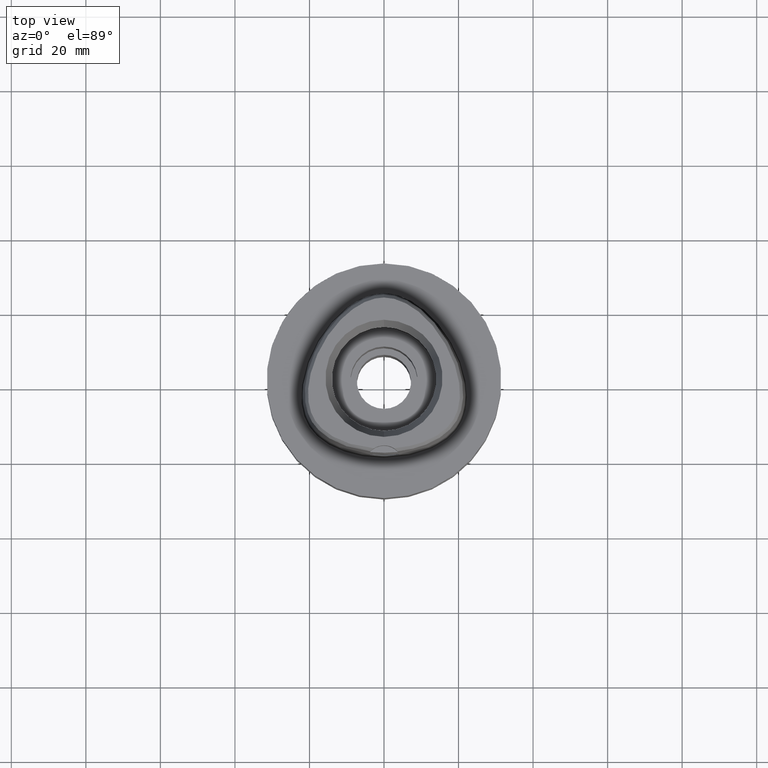
[diagram: clean part render]
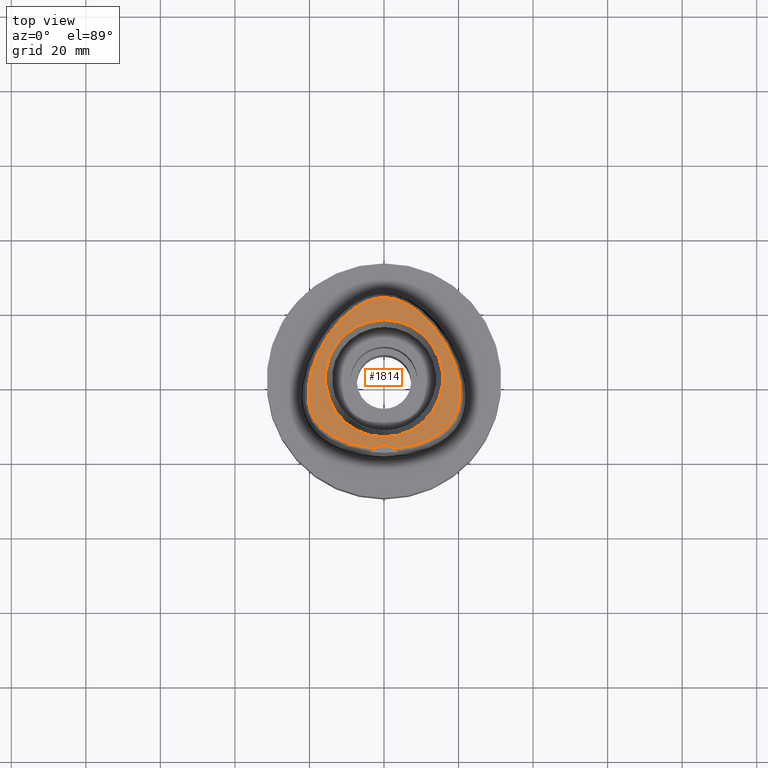
[diagram: same view with one face highlighted and labeled with its STEP entity id]
A machine part, top view. The second image highlights one B-rep face of the part: STEP entity #1814.
In plain terms, the highlighted planar face has unit normal (0, 0, 1).
Its self-contained STEP definition (entity closure, byte-faithful):
#17=CARTESIAN_POINT('',(0.E0,-2.3E1,3.8E1));
#18=DIRECTION('',(0.E0,0.E0,1.E0));
#19=DIRECTION('',(5.364574965210E-1,8.439273395420E-1,0.E0));
#20=AXIS2_PLACEMENT_3D('',#17,#18,#19);
#26=CARTESIAN_POINT('',(0.E0,-2.3E1,3.8E1));
#27=DIRECTION('',(0.E0,0.E0,1.E0));
#28=DIRECTION('',(0.E0,1.E0,0.E0));
#29=AXIS2_PLACEMENT_3D('',#26,#27,#28);
#34=CARTESIAN_POINT('',(-2.682279906005E0,-1.878035848610E1,3.8E1));
#35=CARTESIAN_POINT('',(-3.605044543575E0,-1.870650437950E1,3.8E1));
#36=CARTESIAN_POINT('',(-5.365912979900E0,-1.848966039945E1,3.8E1));
#37=CARTESIAN_POINT('',(-7.814932398298E0,-1.797793258966E1,3.8E1));
#38=CARTESIAN_POINT('',(-9.898201877495E0,-1.735843845320E1,3.8E1));
#39=CARTESIAN_POINT('',(-1.170961142687E1,-1.665946001555E1,3.8E1));
#40=CARTESIAN_POINT('',(-1.334375963002E1,-1.586644387461E1,3.8E1));
#41=CARTESIAN_POINT('',(-1.480618163515E1,-1.498253951072E1,3.8E1));
#42=CARTESIAN_POINT('',(-1.604171482152E1,-1.405870325864E1,3.8E1));
#43=CARTESIAN_POINT('',(-1.706528419309E1,-1.311841240330E1,3.8E1));
#44=CARTESIAN_POINT('',(-1.790739026018E1,-1.216455668928E1,3.8E1));
#45=CARTESIAN_POINT('',(-1.858910201746E1,-1.120363085430E1,3.8E1));
#46=CARTESIAN_POINT('',(-1.914742921930E1,-1.020016978026E1,3.8E1));
#47=CARTESIAN_POINT('',(-1.961575120582E1,-9.090601574277E0,3.8E1));
#48=CARTESIAN_POINT('',(-1.999289826707E1,-7.840569600446E0,3.8E1));
#49=CARTESIAN_POINT('',(-2.026237944030E1,-6.438762205995E0,3.8E1));
#50=CARTESIAN_POINT('',(-2.040516017540E1,-4.845126522337E0,3.8E1));
#51=CARTESIAN_POINT('',(-2.039150448428E1,-3.103493908578E0,3.8E1));
#52=CARTESIAN_POINT('',(-2.021359234150E1,-1.270380684030E0,3.8E1));
#53=CARTESIAN_POINT('',(-1.986015366214E1,6.921718297762E-1,3.8E1));
#54=CARTESIAN_POINT('',(-1.927772501244E1,2.897861535362E0,3.8E1));
#55=CARTESIAN_POINT('',(-1.840691846273E1,5.339552270274E0,3.8E1));
#56=CARTESIAN_POINT('',(-1.728006101077E1,7.816127792934E0,3.8E1));
#57=CARTESIAN_POINT('',(-1.592729686199E1,1.023932583429E1,3.8E1));
#58=CARTESIAN_POINT('',(-1.439244134278E1,1.252438524484E1,3.8E1));
#59=CARTESIAN_POINT('',(-1.273649414019E1,1.459258366883E1,3.8E1));
#60=CARTESIAN_POINT('',(-1.109687558070E1,1.631910659473E1,3.8E1));
#61=CARTESIAN_POINT('',(-9.550338956047E0,1.770478286875E1,3.8E1));
#62=CARTESIAN_POINT('',(-8.043662397608E0,1.885066641454E1,3.8E1));
#63=CARTESIAN_POINT('',(-6.544984523643E0,1.979885074261E1,3.8E1));
#64=CARTESIAN_POINT('',(-5.076347123534E0,2.054544732473E1,3.8E1));
#65=CARTESIAN_POINT('',(-3.688723480709E0,2.108513043701E1,3.8E1));
#66=CARTESIAN_POINT('',(-2.389891480302E0,2.144239305594E1,3.8E1));
#67=CARTESIAN_POINT('',(-1.169135698992E0,2.164401263346E1,3.8E1));
#68=CARTESIAN_POINT('',(-3.836699104126E-1,2.168728795389E1,3.8E1));
#69=CARTESIAN_POINT('',(-3.470944899438E-11,2.168728795390E1,3.8E1));
#74=CARTESIAN_POINT('',(-3.470944899438E-11,2.168728795390E1,3.8E1));
#75=CARTESIAN_POINT('',(3.828524697474E-1,2.168728795390E1,3.8E1));
#76=CARTESIAN_POINT('',(1.166996534032E0,2.164416961378E1,3.8E1));
#77=CARTESIAN_POINT('',(2.386214977875E0,2.144323212036E1,3.8E1));
#78=CARTESIAN_POINT('',(3.685440857519E0,2.108607838229E1,3.8E1));
#79=CARTESIAN_POINT('',(5.068734360611E0,2.054896561737E1,3.8E1));
#80=CARTESIAN_POINT('',(6.547470890100E0,1.979788975628E1,3.8E1));
#81=CARTESIAN_POINT('',(8.051451922599E0,1.884520879348E1,3.8E1));
#82=CARTESIAN_POINT('',(9.550967775840E0,1.770368171045E1,3.8E1));
#83=CARTESIAN_POINT('',(1.108961265526E1,1.632644584861E1,3.8E1));
#84=CARTESIAN_POINT('',(1.274408323069E1,1.458466559719E1,3.8E1));
#85=CARTESIAN_POINT('',(1.440110122193E1,1.251215841303E1,3.8E1));
#86=CARTESIAN_POINT('',(1.592917864170E1,1.023592163505E1,3.8E1));
#87=CARTESIAN_POINT('',(1.728249372404E1,7.811612293159E0,3.8E1));
#88=CARTESIAN_POINT('',(1.840947090673E1,5.333016239902E0,3.8E1));
#89=CARTESIAN_POINT('',(1.927827884097E1,2.896047688491E0,3.8E1));
#90=CARTESIAN_POINT('',(1.986169497045E1,6.857582069426E-1,3.8E1));
#91=CARTESIAN_POINT('',(2.021463167960E1,-1.277500707830E0,3.8E1));
#92=CARTESIAN_POINT('',(2.039215262591E1,-3.113949257389E0,3.8E1));
#93=CARTESIAN_POINT('',(2.040457260960E1,-4.853061352227E0,3.8E1));
#94=CARTESIAN_POINT('',(2.026250945151E1,-6.436967408461E0,3.8E1));
#95=CARTESIAN_POINT('',(1.999278122177E1,-7.841153107175E0,3.8E1));
#96=CARTESIAN_POINT('',(1.961657446255E1,-9.088071154904E0,3.8E1));
#97=CARTESIAN_POINT('',(1.914799894733E1,-1.019925697743E1,3.8E1));
#98=CARTESIAN_POINT('',(1.858861634893E1,-1.120442390857E1,3.8E1));
#99=CARTESIAN_POINT('',(1.790676546633E1,-1.216546320118E1,3.8E1));
#100=CARTESIAN_POINT('',(1.706255639083E1,-1.312117513838E1,3.8E1));
#101=CARTESIAN_POINT('',(1.604112355787E1,-1.405905238164E1,3.8E1));
#102=CARTESIAN_POINT('',(1.480468256930E1,-1.498381942960E1,3.8E1));
#103=CARTESIAN_POINT('',(1.333561002137E1,-1.587085244603E1,3.8E1));
#104=CARTESIAN_POINT('',(1.170721758924E1,-1.666028797660E1,3.8E1));
#105=CARTESIAN_POINT('',(9.897832747889E0,-1.735855037423E1,3.8E1));
#106=CARTESIAN_POINT('',(7.814642341740E0,-1.797806482327E1,3.8E1));
#107=CARTESIAN_POINT('',(5.362599318074E0,-1.849023051912E1,3.8E1));
#108=CARTESIAN_POINT('',(3.603613972740E0,-1.870661327412E1,3.8E1));
#109=CARTESIAN_POINT('',(2.682287482607E0,-1.878036330229E1,3.8E1));
#114=CARTESIAN_POINT('',(0.E0,0.E0,3.8E1));
#115=DIRECTION('',(0.E0,0.E0,1.E0));
#116=DIRECTION('',(0.E0,1.E0,0.E0));
#117=AXIS2_PLACEMENT_3D('',#114,#115,#116);
#122=CARTESIAN_POINT('',(0.E0,0.E0,3.8E1));
#123=DIRECTION('',(0.E0,0.E0,1.E0));
#124=DIRECTION('',(0.E0,-1.E0,0.E0));
#125=AXIS2_PLACEMENT_3D('',#122,#123,#124);
#1606=CARTESIAN_POINT('',(0.E0,-1.8E1,3.8E1));
#1607=CARTESIAN_POINT('',(-2.682279906007E0,-1.878035848610E1,3.8E1));
#1608=VERTEX_POINT('',#1606);
#1609=VERTEX_POINT('',#1607);
#1610=CARTESIAN_POINT('',(2.682287482605E0,-1.878036330229E1,3.8E1));
#1611=VERTEX_POINT('',#1610);
#1612=VERTEX_POINT('',#69);
#1613=CARTESIAN_POINT('',(0.E0,1.571487483156E1,3.8E1));
#1614=CARTESIAN_POINT('',(0.E0,-1.571487483156E1,3.8E1));
#1615=VERTEX_POINT('',#1613);
#1616=VERTEX_POINT('',#1614);
#1793=CARTESIAN_POINT('',(0.E0,0.E0,3.8E1));
#1794=DIRECTION('',(0.E0,0.E0,1.E0));
#1795=DIRECTION('',(0.E0,1.E0,0.E0));
#1796=AXIS2_PLACEMENT_3D('',#1793,#1794,#1795);
#1797=PLANE('',#1796);
#1799=ORIENTED_EDGE('',*,*,#1798,.T.);
#1801=ORIENTED_EDGE('',*,*,#1800,.T.);
#1803=ORIENTED_EDGE('',*,*,#1802,.T.);
#1805=ORIENTED_EDGE('',*,*,#1804,.T.);
#1806=EDGE_LOOP('',(#1799,#1801,#1803,#1805));
#1807=FACE_OUTER_BOUND('',#1806,.F.);
#1809=ORIENTED_EDGE('',*,*,#1808,.T.);
#1811=ORIENTED_EDGE('',*,*,#1810,.T.);
#1812=EDGE_LOOP('',(#1809,#1811));
#1813=FACE_BOUND('',#1812,.F.);
#21=CIRCLE('',#20,5.E0);
#30=CIRCLE('',#29,5.E0);
#70=B_SPLINE_CURVE_WITH_KNOTS('',3,(#34,#35,#36,#37,#38,#39,#40,#41,#42,#43,#44,
#45,#46,#47,#48,#49,#50,#51,#52,#53,#54,#55,#56,#57,#58,#59,#60,#61,#62,#63,#64,
#65,#66,#67,#68,#69),.UNSPECIFIED.,.F.,.F.,(4,1,1,1,1,1,1,1,1,1,1,1,1,1,1,1,1,1,
1,1,1,1,1,1,1,1,1,1,1,1,1,1,1,4),(0.E0,3.030303030303E-2,6.060606060606E-2,
9.090909090909E-2,1.212121212121E-1,1.515151515152E-1,1.818181818182E-1,
2.121212121212E-1,2.424242424242E-1,2.727272727273E-1,3.030303030303E-1,
3.333333333333E-1,3.636363636364E-1,3.939393939394E-1,4.242424242424E-1,
4.545454545455E-1,4.848484848485E-1,5.151515151515E-1,5.454545454545E-1,
5.757575757576E-1,6.060606060606E-1,6.363636363636E-1,6.666666666667E-1,
6.969696969697E-1,7.272727272727E-1,7.575757575758E-1,7.878787878788E-1,
8.181818181818E-1,8.484848484848E-1,8.787878787879E-1,9.090909090909E-1,
9.393939393939E-1,9.696969696970E-1,1.E0),.UNSPECIFIED.);
#110=B_SPLINE_CURVE_WITH_KNOTS('',3,(#74,#75,#76,#77,#78,#79,#80,#81,#82,#83,
#84,#85,#86,#87,#88,#89,#90,#91,#92,#93,#94,#95,#96,#97,#98,#99,#100,#101,#102,
#103,#104,#105,#106,#107,#108,#109),.UNSPECIFIED.,.F.,.F.,(4,1,1,1,1,1,1,1,1,1,
1,1,1,1,1,1,1,1,1,1,1,1,1,1,1,1,1,1,1,1,1,1,1,4),(0.E0,3.030303030303E-2,
6.060606060606E-2,9.090909090909E-2,1.212121212121E-1,1.515151515152E-1,
1.818181818182E-1,2.121212121212E-1,2.424242424242E-1,2.727272727273E-1,
3.030303030303E-1,3.333333333333E-1,3.636363636364E-1,3.939393939394E-1,
4.242424242424E-1,4.545454545455E-1,4.848484848485E-1,5.151515151515E-1,
5.454545454545E-1,5.757575757576E-1,6.060606060606E-1,6.363636363636E-1,
6.666666666667E-1,6.969696969697E-1,7.272727272727E-1,7.575757575758E-1,
7.878787878788E-1,8.181818181818E-1,8.484848484848E-1,8.787878787879E-1,
9.090909090909E-1,9.393939393939E-1,9.696969696970E-1,1.E0),.UNSPECIFIED.);
#118=CIRCLE('',#117,1.571487483156E1);
#126=CIRCLE('',#125,1.571487483156E1);
#1798=EDGE_CURVE('',#1611,#1608,#21,.T.);
#1800=EDGE_CURVE('',#1608,#1609,#30,.T.);
#1802=EDGE_CURVE('',#1609,#1612,#70,.T.);
#1804=EDGE_CURVE('',#1612,#1611,#110,.T.);
#1808=EDGE_CURVE('',#1615,#1616,#118,.T.);
#1810=EDGE_CURVE('',#1616,#1615,#126,.T.);
#1814=ADVANCED_FACE('',(#1807,#1813),#1797,.T.);